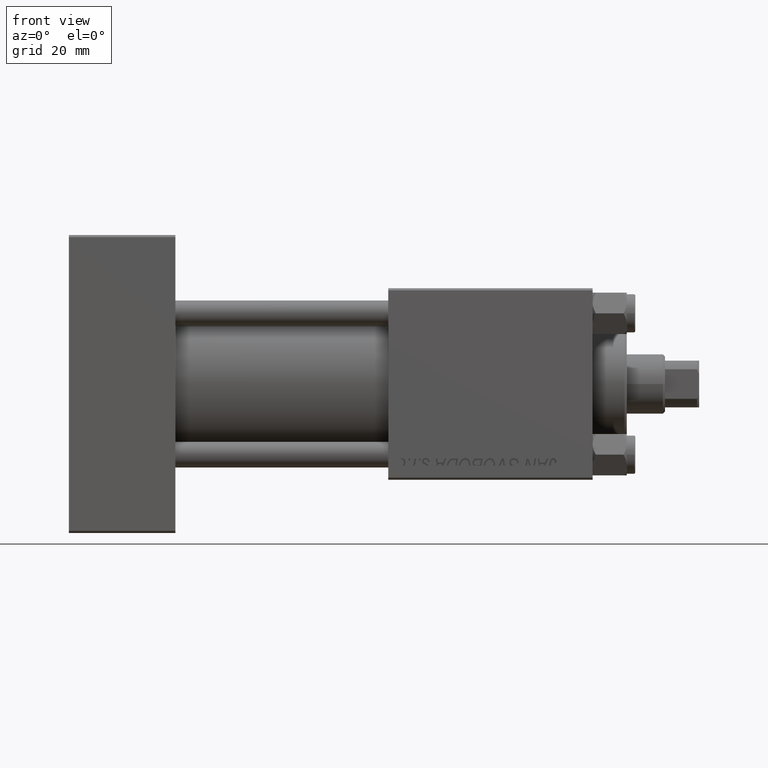
[diagram: clean part render]
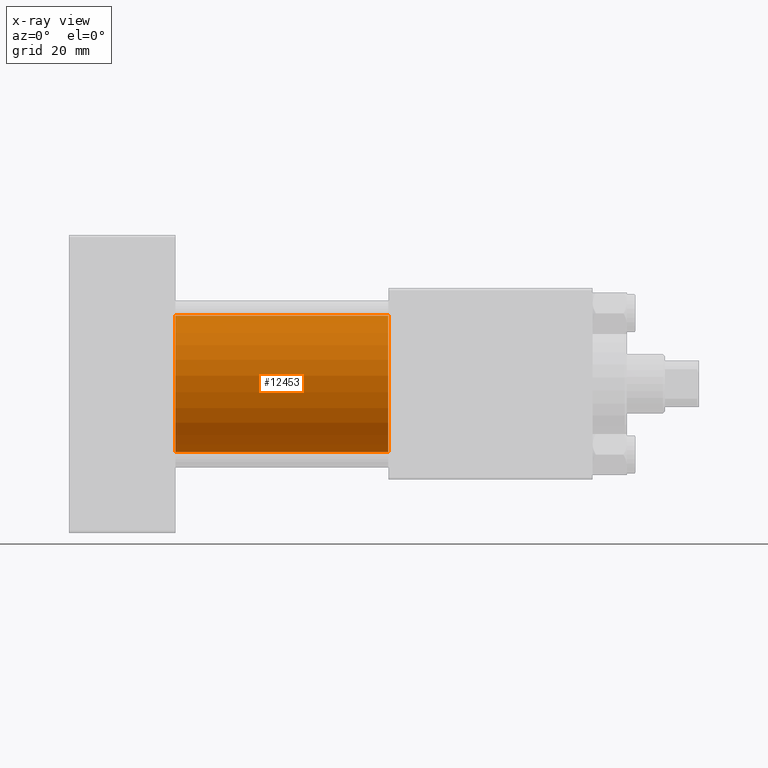
[diagram: x-ray — body ghosted, one internal face saturated and labeled with its STEP entity id]
A machine part, front view, then the same camera in x-ray: the body is ghosted and one INTERNAL B-rep face — a face not visible from any outside direction — is saturated and labeled: STEP entity #12453.
In plain terms, the highlighted cylindrical surface (partial cylindrical patch) has radius 16 mm, axis along (-1, -0, -0).
Its self-contained STEP definition (entity closure, byte-faithful):
#574 = VERTEX_POINT ( 'NONE', #45956 ) ;
#2609 = CARTESIAN_POINT ( 'NONE',  ( 75.00000000000001421, -2.602085213965210642E-15, 0.000000000000000000 ) ) ;
#2859 = EDGE_CURVE ( 'NONE', #11932, #18853, #16896, .T. ) ;
#4727 = CARTESIAN_POINT ( 'NONE',  ( 75.00000000000001421, -6.426503353294456087E-16, -16.00000000000000000 ) ) ;
#5407 = AXIS2_PLACEMENT_3D ( 'NONE', #2609, #27034, #6032 ) ;
#6032 = DIRECTION ( 'NONE',  ( 0.000000000000000000, 0.000000000000000000, 1.000000000000000000 ) ) ;
#7170 = VECTOR ( 'NONE', #44893, 1000.000000000000000 ) ;
#8857 = CARTESIAN_POINT ( 'NONE',  ( 25.00000000000000000, -2.602085213965210642E-15, 16.00000000000000000 ) ) ;
#11065 = ORIENTED_EDGE ( 'NONE', *, *, #2859, .F. ) ;
#11261 = FACE_OUTER_BOUND ( 'NONE', #40290, .T. ) ;
#11647 = EDGE_CURVE ( 'NONE', #574, #11932, #50189, .T. ) ;
#11676 = CIRCLE ( 'NONE', #45258, 16.00000000000000000 ) ;
#11932 = VERTEX_POINT ( 'NONE', #8857 ) ;
#12315 = CARTESIAN_POINT ( 'NONE',  ( 75.00000000000001421, -6.426503353294456087E-16, -16.00000000000000000 ) ) ;
#12453 = ADVANCED_FACE ( 'NONE', ( #11261 ), #38603, .F. ) ;
#13017 = CARTESIAN_POINT ( 'NONE',  ( 75.00000000000001421, -2.602085213965210642E-15, 0.000000000000000000 ) ) ;
#14174 = CARTESIAN_POINT ( 'NONE',  ( 75.00000000000001421, -2.602085213965210642E-15, 16.00000000000000000 ) ) ;
#14974 = EDGE_CURVE ( 'NONE', #36667, #18853, #48068, .T. ) ;
#16896 = CIRCLE ( 'NONE', #21098, 16.00000000000000000 ) ;
#16982 = DIRECTION ( 'NONE',  ( 1.000000000000000000, 0.000000000000000000, 0.000000000000000000 ) ) ;
#18853 = VERTEX_POINT ( 'NONE', #43123 ) ;
#21098 = AXIS2_PLACEMENT_3D ( 'NONE', #41406, #16982, #32995 ) ;
#25516 = VECTOR ( 'NONE', #30195, 1000.000000000000000 ) ;
#27034 = DIRECTION ( 'NONE',  ( -1.000000000000000000, -0.000000000000000000, -0.000000000000000000 ) ) ;
#29038 = DIRECTION ( 'NONE',  ( 1.000000000000000000, 0.000000000000000000, 0.000000000000000000 ) ) ;
#30195 = DIRECTION ( 'NONE',  ( -1.000000000000000000, -0.000000000000000000, -0.000000000000000000 ) ) ;
#32995 = DIRECTION ( 'NONE',  ( 0.000000000000000000, 0.000000000000000000, -1.000000000000000000 ) ) ;
#34126 = ORIENTED_EDGE ( 'NONE', *, *, #44274, .T. ) ;
#36667 = VERTEX_POINT ( 'NONE', #4727 ) ;
#38603 = CYLINDRICAL_SURFACE ( 'NONE', #5407, 16.00000000000000000 ) ;
#40290 = EDGE_LOOP ( 'NONE', ( #34126, #51156, #11065, #43036 ) ) ;
#41406 = CARTESIAN_POINT ( 'NONE',  ( 25.00000000000000000, -2.602085213965210642E-15, 0.000000000000000000 ) ) ;
#43036 = ORIENTED_EDGE ( 'NONE', *, *, #11647, .F. ) ;
#43123 = CARTESIAN_POINT ( 'NONE',  ( 25.00000000000000000, -6.426503353294456087E-16, -16.00000000000000000 ) ) ;
#44274 = EDGE_CURVE ( 'NONE', #574, #36667, #11676, .T. ) ;
#44893 = DIRECTION ( 'NONE',  ( -1.000000000000000000, -0.000000000000000000, -0.000000000000000000 ) ) ;
#45079 = DIRECTION ( 'NONE',  ( 0.000000000000000000, 0.000000000000000000, -1.000000000000000000 ) ) ;
#45258 = AXIS2_PLACEMENT_3D ( 'NONE', #13017, #29038, #45079 ) ;
#45956 = CARTESIAN_POINT ( 'NONE',  ( 75.00000000000001421, -2.602085213965210642E-15, 16.00000000000000000 ) ) ;
#48068 = LINE ( 'NONE', #12315, #7170 ) ;
#50189 = LINE ( 'NONE', #14174, #25516 ) ;
#51156 = ORIENTED_EDGE ( 'NONE', *, *, #14974, .T. ) ;